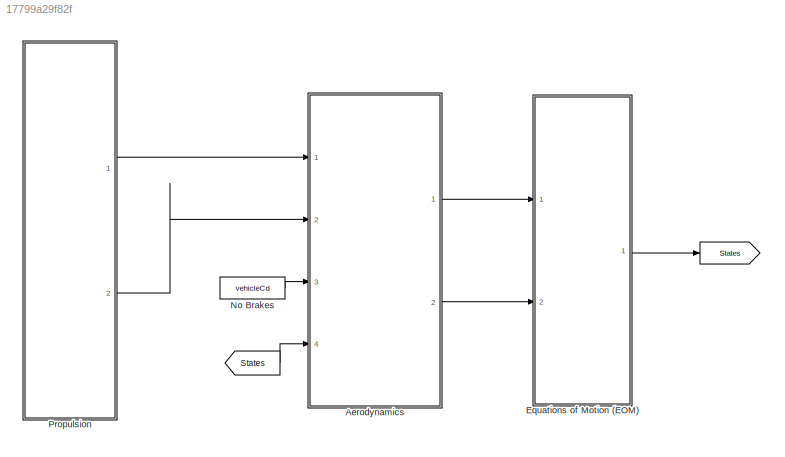
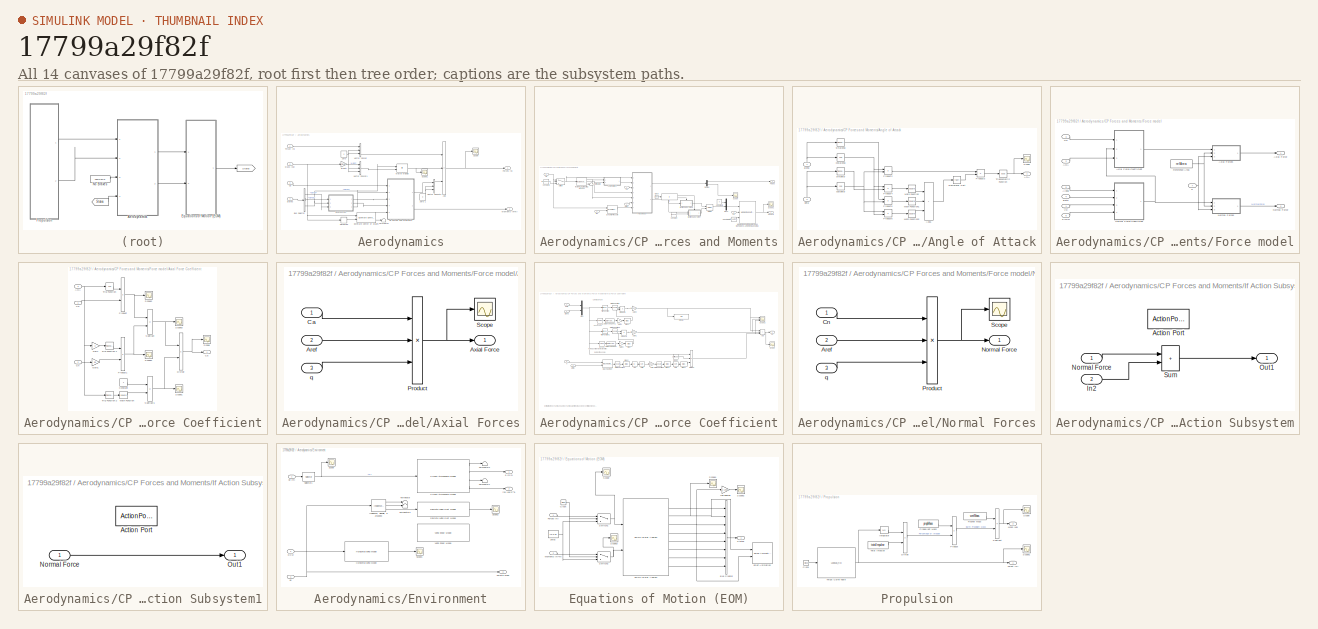
[diagram: thumbnail index - all 14 canvases of the model, root first then tree order]
MODEL slx_17799a29f82f
KIND model
CONFIG AbsTol = auto
CONFIG EnableMultiTasking = off
CONFIG FixedStep = auto
CONFIG MaxStep = auto
CONFIG MinStep = auto
CONFIG RelTol = 1e-3
CONFIG SampleTimeConstraint = Unconstrained
CONFIG SolverName = VariableStepAuto
CONFIG StartTime = 0.0
CONFIG StopTime = 45
WORKSPACE source: mxarray member
WORKSPACE bodyLength = 5
WORKSPACE brakesCd = 1
WORKSPACE brakesOn = 1
WORKSPACE dryCG = 3.9
WORKSPACE dryMass = 23
WORKSPACE finArea = 0.2
WORKSPACE finChordAngle = 0.5236
WORKSPACE finSpan = 0.4
WORKSPACE fullBrakesOn = 0
WORKSPACE gravity = 9.8067
WORKSPACE noseLength = 0.5
WORKSPACE propMass = 7.183
WORKSPACE refArea = 0.0182
WORKSPACE rocketCP = 1
WORKSPACE rocketDiam = 0.197
WORKSPACE targetAlt = 3048
WORKSPACE thrust = [0 2638.366 2528.97 3063.078 2426.009 2548.275 2599.755 2554.71 2644.801 2638.366 2561.145 2606.19 ... (27 elements, 27x1)]
WORKSPACE time = [0 0.045 0.067 0.084 0.124 0.186 0.231 0.298 0.371 0.534 0.979 1.142 ... (27 elements, 27x1)]
WORKSPACE totalImpulse = 10831
WORKSPACE vehicleCd = 0.8
WORKSPACE wetCG = 4
WORKSPACE wetMass = 30
BLOCK [Goto]  
  GotoTag = States
BLOCK [From]   
  GotoTag = States
BLOCK [SubSystem] Aerodynamics
  Ports = [4, 2]
  RequestExecContextInheritance = off
BLOCK [Sum] Aerodynamics/Add
  IconShape = rectangular
  Inputs = +--
  Ports = [3, 1]
BLOCK [BusSelector] Aerodynamics/Bus Selector
  OutputSignals = signal5,signal2,signal4
  Ports = [1, 3]
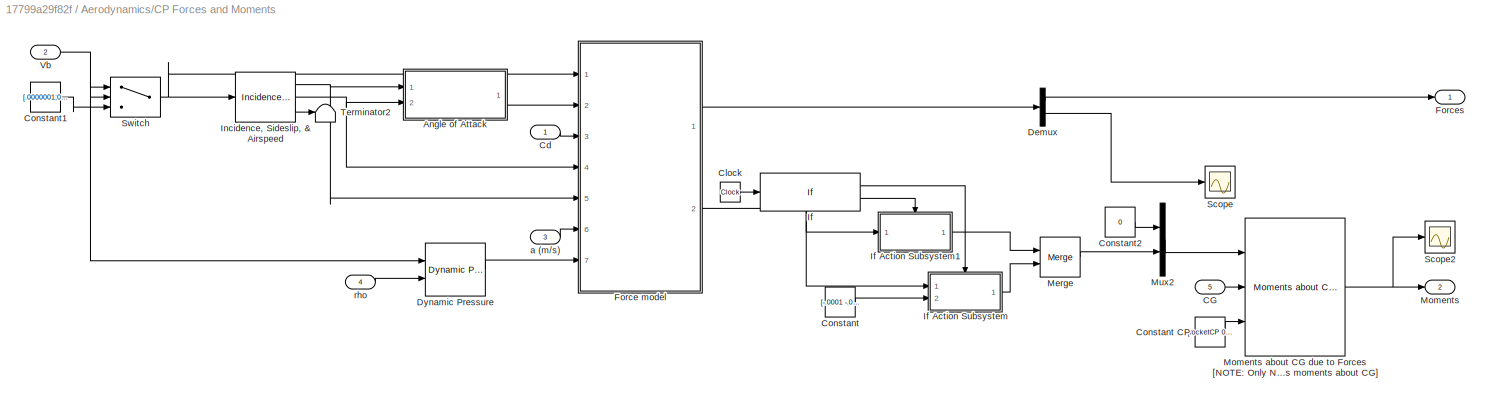
BLOCK [SubSystem] Aerodynamics/CP Forces and Moments
  Ports = [5, 2]
  RequestExecContextInheritance = off
BLOCK [SubSystem] Aerodynamics/CP Forces and Moments/Angle of Attack
  Ports = [2, 1]
  RequestExecContextInheritance = off
BLOCK [Outport] Aerodynamics/CP Forces and Moments/Angle of Attack/AOA
BLOCK [Sum] Aerodynamics/CP Forces and Moments/Angle of Attack/Add1
  IconShape = rectangular
  Inputs = +++
  Ports = [3, 1]
BLOCK [Math] Aerodynamics/CP Forces and Moments/Angle of Attack/Math Function
  Operator = square
  Ports = [1, 1]
  SignedPower = on
BLOCK [Math] Aerodynamics/CP Forces and Moments/Angle of Attack/Math Function1
  Operator = square
  Ports = [1, 1]
  SignedPower = on
BLOCK [Math] Aerodynamics/CP Forces and Moments/Angle of Attack/Math Function2
  Operator = square
  Ports = [1, 1]
  SignedPower = on
BLOCK [Product] Aerodynamics/CP Forces and Moments/Angle of Attack/Product2
  Ports = [2, 1]
BLOCK [Product] Aerodynamics/CP Forces and Moments/Angle of Attack/Product3
  Ports = [2, 1]
BLOCK [Product] Aerodynamics/CP Forces and Moments/Angle of Attack/Product4
  Ports = [2, 1]
BLOCK [Product] Aerodynamics/CP Forces and Moments/Angle of Attack/Product5
  Ports = [2, 1]
BLOCK [Product] Aerodynamics/CP Forces and Moments/Angle of Attack/Product6
  Ports = [2, 1]
BLOCK [Sqrt] Aerodynamics/CP Forces and Moments/Angle of Attack/Reciprocal Sqrt
  Operator = rSqrt
BLOCK [Scope] Aerodynamics/CP Forces and Moments/Angle of Attack/Scope
  Floating = off
  NumInputPorts = 1
  Ports = [1]
  ScopeSpecificationString = Simulink.scopes.TimeScopeBlockCfg('CurrentConfiguration', extmgr.ConfigurationSet(extmgr.Configuration('Core','General UI',true),extmgr.Configuration('Core','Source UI',true),extmgr.Configuration('Sources','WiredSimulink',true,'DataLoggingVariableName','ScopeData23','DataLoggingLimitDataPoints',true,'DataLoggingSaveFormat','Array','DataLoggingDecimation','1','DataLoggingDecimateData',true),extmgr....<+1682ch>
BLOCK [Trigonometry] Aerodynamics/CP Forces and Moments/Angle of Attack/Trigonometric Function
  Operator = acos
  Ports = [1, 1]
BLOCK [Inport] Aerodynamics/CP Forces and Moments/Angle of Attack/alpha
  NameLocation = right
BLOCK [Inport] Aerodynamics/CP Forces and Moments/Angle of Attack/beta
  NameLocation = right
  Port = 2
BLOCK [Trigonometry] Aerodynamics/CP Forces and Moments/Angle of Attack/cos(alpha)
  Operator = cos
  Ports = [1, 1]
BLOCK [Trigonometry] Aerodynamics/CP Forces and Moments/Angle of Attack/cos(beta)
  Operator = cos
  Ports = [1, 1]
BLOCK [Trigonometry] Aerodynamics/CP Forces and Moments/Angle of Attack/sin(alpha)
  Ports = [1, 1]
BLOCK [Trigonometry] Aerodynamics/CP Forces and Moments/Angle of Attack/sin(beta)
  Ports = [1, 1]
BLOCK [Inport] Aerodynamics/CP Forces and Moments/CG
  Port = 5
BLOCK [Inport] Aerodynamics/CP Forces and Moments/Cd
BLOCK [Clock] Aerodynamics/CP Forces and Moments/Clock
BLOCK [Constant] Aerodynamics/CP Forces and Moments/Constant
  Value = [-.0001 -.0001]
BLOCK [Constant] Aerodynamics/CP Forces and Moments/Constant CP
  Value = [rocketCP 0 0]
BLOCK [Constant] Aerodynamics/CP Forces and Moments/Constant1
  Value = [.0000001;0;0]
  VectorParams1D = off
BLOCK [Constant] Aerodynamics/CP Forces and Moments/Constant2
  Value = 0
BLOCK [Demux] Aerodynamics/CP Forces and Moments/Demux
  Outputs = 2
  Ports = [1, 2]
BLOCK [Reference] Aerodynamics/CP Forces and Moments/Dynamic Pressure  REF=aerolibasang/Dynamic Pressure
  Ports = [2, 1]
  SourceBlock = aerolibasang/Dynamic Pressure
  SourceProductBaseCode = AE
  SourceType = Dynamic Pressure
BLOCK [SubSystem] Aerodynamics/CP Forces and Moments/Force model
  Ports = [7, 2]
  RequestExecContextInheritance = off
BLOCK [Inport] Aerodynamics/CP Forces and Moments/Force model/AOA
  Port = 2
BLOCK [Inport] Aerodynamics/CP Forces and Moments/Force model/Alpha
  Port = 5
BLOCK [Outport] Aerodynamics/CP Forces and Moments/Force model/Axial Force
BLOCK [SubSystem] Aerodynamics/CP Forces and Moments/Force model/Axial Force Coefficient
  Ports = [3, 1]
  RequestExecContextInheritance = off
BLOCK [Inport] Aerodynamics/CP Forces and Moments/Force model/Axial Force Coefficient/AOA
  Port = 3
BLOCK [Outport] Aerodynamics/CP Forces and Moments/Force model/Axial Force Coefficient/Ca
BLOCK [Inport] Aerodynamics/CP Forces and Moments/Force model/Axial Force Coefficient/Cd
BLOCK [Inport] Aerodynamics/CP Forces and Moments/Force model/Axial Force Coefficient/Cn
  Port = 2
BLOCK [Constant] Aerodynamics/CP Forces and Moments/Force model/Axial Force Coefficient/Constant
BLOCK [Product] Aerodynamics/CP Forces and Moments/Force model/Axial Force Coefficient/Divide
  Inputs = */
  Ports = [2, 1]
BLOCK [Gain] Aerodynamics/CP Forces and Moments/Force model/Axial Force Coefficient/Gain
  Gain = 2
BLOCK [Gain] Aerodynamics/CP Forces and Moments/Force model/Axial Force Coefficient/Gain1
  Gain = 0.5
BLOCK [Math] Aerodynamics/CP Forces and Moments/Force model/Axial Force Coefficient/Math Function
  Operator = square
  Ports = [1, 1]
  SignedPower = on
BLOCK [Product] Aerodynamics/CP Forces and Moments/Force model/Axial Force Coefficient/Product
  Ports = [2, 1]
BLOCK [Product] Aerodynamics/CP Forces and Moments/Force model/Axial Force Coefficient/Product1
  Ports = [2, 1]
BLOCK [Scope] Aerodynamics/CP Forces and Moments/Force model/Axial Force Coefficient/Scope
  Floating = off
  NumInputPorts = 1
  Ports = [1]
  ScopeSpecificationString = Simulink.scopes.TimeScopeBlockCfg('CurrentConfiguration', extmgr.ConfigurationSet(extmgr.Configuration('Core','General UI',true),extmgr.Configuration('Core','Source UI',true),extmgr.Configuration('Sources','WiredSimulink',true,'DataLoggingVariableName','ScopeData5','DataLoggingLimitDataPoints',true,'DataLoggingSaveFormat','Array','DataLoggingDecimation','1','DataLoggingDecimateData',true),extmgr.C...<+1753ch>
BLOCK [Scope] Aerodynamics/CP Forces and Moments/Force model/Axial Force Coefficient/Scope1
  Floating = off
  NumInputPorts = 1
  Ports = [1]
  ScopeSpecificationString = C++SS(StrPVP('Location','[188, 365, 512, 604]'),StrPVP('Open','off'),MxPVP('AxesTitles',54,'struct(''axes1'',''%<SignalLabel>'')'),MxPVP('ScopeGraphics',57,'struct(''FigureColor'',''[0.5 0.5 0.5]'',''AxesColor'',''[0 0 0]'',''AxesTickColor'',''[1 1 1]'',''LineColors'',''[1 1 0;1 0 1;0 1 1;1 0 0;0 1 0;0 0 1]'',''LineStyles'',''-|-|-|-|-|-'',''LineWidths'',''[0.5 0.5 0.5 0.5 0.5 0.5]'',''MarkerStyle...<+197ch>  <repeated x3 — deduplicated; at blocks: Scope1, Scope3, Scope4>
BLOCK [Scope] Aerodynamics/CP Forces and Moments/Force model/Axial Force Coefficient/Scope2
  Floating = off
  NumInputPorts = 1
  Ports = [1]
  ScopeSpecificationString = Simulink.scopes.TimeScopeBlockCfg('CurrentConfiguration', extmgr.ConfigurationSet(extmgr.Configuration('Core','General UI',true),extmgr.Configuration('Core','Source UI',true),extmgr.Configuration('Sources','WiredSimulink',true,'DataLoggingVariableName','ScopeData15','DataLoggingLimitDataPoints',true,'DataLoggingSaveFormat','Array','DataLoggingDecimation','1','DataLoggingDecimateData',true),extmgr....<+1669ch>
BLOCK [Scope] Aerodynamics/CP Forces and Moments/Force model/Axial Force Coefficient/Scope3
  Floating = off
  NumInputPorts = 1
  Ports = [1]
BLOCK [Scope] Aerodynamics/CP Forces and Moments/Force model/Axial Force Coefficient/Scope4
  Floating = off
  NumInputPorts = 1
  Ports = [1]
BLOCK [Sum] Aerodynamics/CP Forces and Moments/Force model/Axial Force Coefficient/Subtract
  IconShape = rectangular
  Inputs = +-
  Ports = [2, 1]
BLOCK [Sum] Aerodynamics/CP Forces and Moments/Force model/Axial Force Coefficient/Subtract1
  IconShape = rectangular
  Inputs = +-
  Ports = [2, 1]
BLOCK [Trigonometry] Aerodynamics/CP Forces and Moments/Force model/Axial Force Coefficient/Trig Function
  Operator = cos
  Ports = [1, 1]
BLOCK [Trigonometry] Aerodynamics/CP Forces and Moments/Force model/Axial Force Coefficient/Trig Function 1
  Ports = [1, 1]
BLOCK [Trigonometry] Aerodynamics/CP Forces and Moments/Force model/Axial Force Coefficient/Trig Function 2
  Ports = [1, 1]
BLOCK [SubSystem] Aerodynamics/CP Forces and Moments/Force model/Axial Forces
  Ports = [3, 1]
  RequestExecContextInheritance = off
BLOCK [Inport] Aerodynamics/CP Forces and Moments/Force model/Axial Forces/Aref
  Port = 2
BLOCK [Outport] Aerodynamics/CP Forces and Moments/Force model/Axial Forces/Axial Force
BLOCK [Inport] Aerodynamics/CP Forces and Moments/Force model/Axial Forces/Ca
BLOCK [Product] Aerodynamics/CP Forces and Moments/Force model/Axial Forces/Product
  Inputs = 3
  Ports = [3, 1]
BLOCK [Scope] Aerodynamics/CP Forces and Moments/Force model/Axial Forces/Scope
  Floating = off
  NumInputPorts = 1
  Ports = [1]
  ScopeSpecificationString = C++SS(StrPVP('Location','[188, 365, 512, 604]'),StrPVP('Open','off'),MxPVP('AxesTitles',54,'struct(''axes1'',''%<SignalLabel>'')'),MxPVP('ScopeGraphics',57,'struct(''FigureColor'',''[0.5 0.5 0.5]'',''AxesColor'',''[0 0 0]'',''AxesTickColor'',''[1 1 1]'',''LineColors'',''[1 1 0;1 0 1;0 1 1;1 0 0;0 1 0;0 0 1]'',''LineStyles'',''-|-|-|-|-|-'',''LineWidths'',''[0.5 0.5 0.5 0.5 0.5 0.5]'',''MarkerStyle...<+268ch>
BLOCK [Inport] Aerodynamics/CP Forces and Moments/Force model/Axial Forces/q 
  Port = 3
BLOCK [Inport] Aerodynamics/CP Forces and Moments/Force model/Beta
  Port = 4
BLOCK [Inport] Aerodynamics/CP Forces and Moments/Force model/Cd
  Port = 3
BLOCK [Outport] Aerodynamics/CP Forces and Moments/Force model/Normal Force
  Port = 2
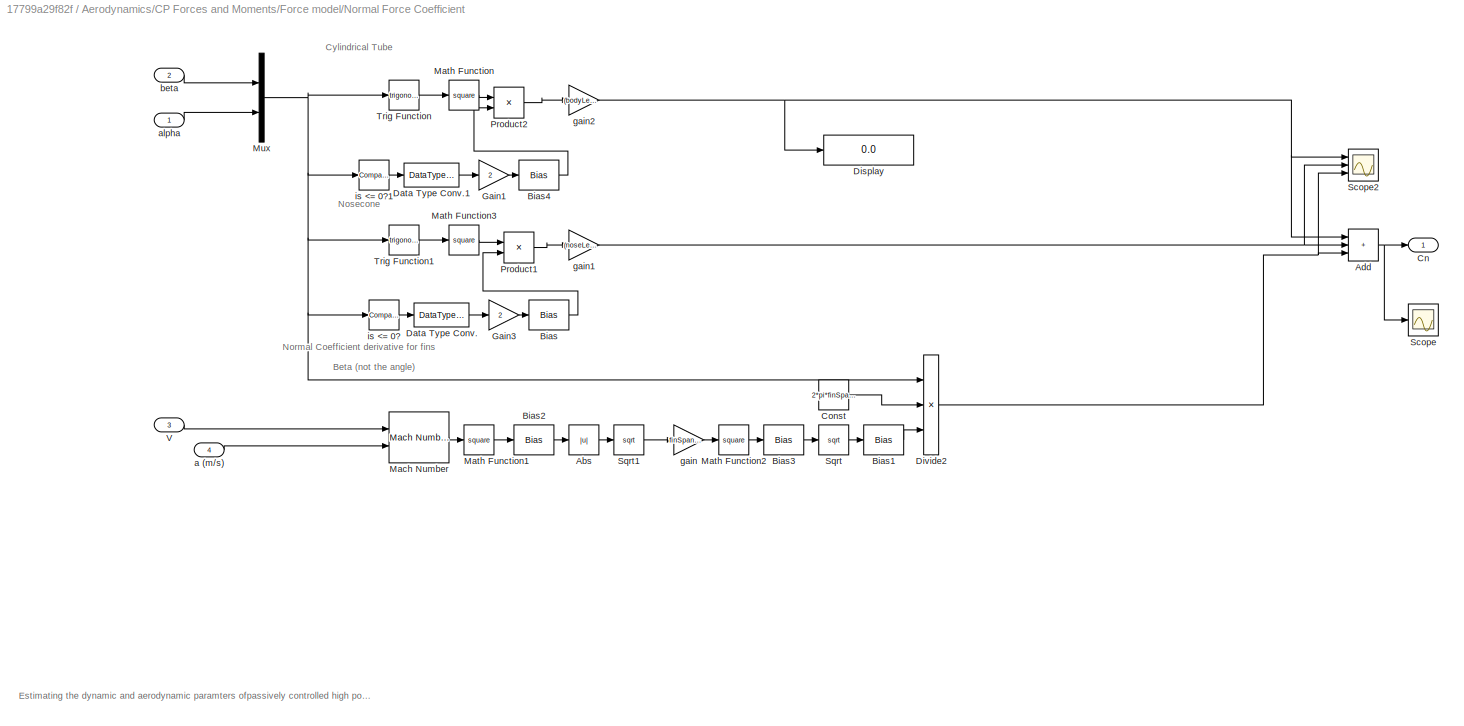
BLOCK [SubSystem] Aerodynamics/CP Forces and Moments/Force model/Normal Force Coefficient
  Ports = [4, 1]
  RequestExecContextInheritance = off
BLOCK [Abs] Aerodynamics/CP Forces and Moments/Force model/Normal Force Coefficient/Abs
  SaturateOnIntegerOverflow = off
BLOCK [Sum] Aerodynamics/CP Forces and Moments/Force model/Normal Force Coefficient/Add
  IconShape = rectangular
  Inputs = +++
  Ports = [3, 1]
BLOCK [Bias] Aerodynamics/CP Forces and Moments/Force model/Normal Force Coefficient/Bias
  Bias = -1
  SaturateOnIntegerOverflow = off
BLOCK [Bias] Aerodynamics/CP Forces and Moments/Force model/Normal Force Coefficient/Bias1
  Bias = 1
  SaturateOnIntegerOverflow = off
BLOCK [Bias] Aerodynamics/CP Forces and Moments/Force model/Normal Force Coefficient/Bias2
  Bias = -1
  SaturateOnIntegerOverflow = off
BLOCK [Bias] Aerodynamics/CP Forces and Moments/Force model/Normal Force Coefficient/Bias3
  Bias = 1
  SaturateOnIntegerOverflow = off
BLOCK [Bias] Aerodynamics/CP Forces and Moments/Force model/Normal Force Coefficient/Bias4
  Bias = -1
  SaturateOnIntegerOverflow = off
BLOCK [Outport] Aerodynamics/CP Forces and Moments/Force model/Normal Force Coefficient/Cn
BLOCK [Constant] Aerodynamics/CP Forces and Moments/Force model/Normal Force Coefficient/Const
  Value = 2*pi*finSpan^2
BLOCK [DataTypeConversion] Aerodynamics/CP Forces and Moments/Force model/Normal Force Coefficient/Data Type Conv.
  RndMeth = Floor
  SaturateOnIntegerOverflow = off
BLOCK [DataTypeConversion] Aerodynamics/CP Forces and Moments/Force model/Normal Force Coefficient/Data Type Conv.1
  RndMeth = Floor
  SaturateOnIntegerOverflow = off
BLOCK [Display] Aerodynamics/CP Forces and Moments/Force model/Normal Force Coefficient/Display
  Decimation = 1
  Ports = [1]
BLOCK [Product] Aerodynamics/CP Forces and Moments/Force model/Normal Force Coefficient/Divide2
  Inputs = **/
  Ports = [3, 1]
BLOCK [Gain] Aerodynamics/CP Forces and Moments/Force model/Normal Force Coefficient/Gain1
  Gain = 2
BLOCK [Gain] Aerodynamics/CP Forces and Moments/Force model/Normal Force Coefficient/Gain3
  Gain = 2
BLOCK [Reference] Aerodynamics/CP Forces and Moments/Force model/Normal Force Coefficient/Mach Number  REF=aerolibasang/Mach Number
  Ports = [2, 1]
  SourceBlock = aerolibasang/Mach Number
  SourceProductBaseCode = AE
  SourceType = Mach Number
BLOCK [Math] Aerodynamics/CP Forces and Moments/Force model/Normal Force Coefficient/Math Function
  Operator = square
  Ports = [1, 1]
  SignedPower = on
BLOCK [Math] Aerodynamics/CP Forces and Moments/Force model/Normal Force Coefficient/Math Function1
  Operator = square
  Ports = [1, 1]
  SignedPower = on
BLOCK [Math] Aerodynamics/CP Forces and Moments/Force model/Normal Force Coefficient/Math Function2
  Operator = square
  Ports = [1, 1]
  SignedPower = on
BLOCK [Math] Aerodynamics/CP Forces and Moments/Force model/Normal Force Coefficient/Math Function3
  Operator = square
  Ports = [1, 1]
  SignedPower = on
BLOCK [Mux] Aerodynamics/CP Forces and Moments/Force model/Normal Force Coefficient/Mux
  DisplayOption = bar
  Inputs = 2
  Ports = [2, 1]
BLOCK [Product] Aerodynamics/CP Forces and Moments/Force model/Normal Force Coefficient/Product1
  Ports = [2, 1]
BLOCK [Product] Aerodynamics/CP Forces and Moments/Force model/Normal Force Coefficient/Product2
  Ports = [2, 1]
BLOCK [Scope] Aerodynamics/CP Forces and Moments/Force model/Normal Force Coefficient/Scope
  Floating = off
  NumInputPorts = 1
  Ports = [1]
  ScopeSpecificationString = Simulink.scopes.TimeScopeBlockCfg('CurrentConfiguration', extmgr.ConfigurationSet(extmgr.Configuration('Core','General UI',true),extmgr.Configuration('Core','Source UI',true),extmgr.Configuration('Sources','WiredSimulink',true,'DataLoggingVariableName','ScopeData1','DataLoggingLimitDataPoints',true,'DataLoggingSaveFormat','Array','DataLoggingDecimation','1','DataLoggingDecimateData',true),extmgr.C...<+1701ch>
BLOCK [Scope] Aerodynamics/CP Forces and Moments/Force model/Normal Force Coefficient/Scope2
  Floating = off
  NumInputPorts = 3
  Ports = [3]
  ScopeSpecificationString = Simulink.scopes.TimeScopeBlockCfg('CurrentConfiguration', extmgr.ConfigurationSet(extmgr.Configuration('Core','General UI',true),extmgr.Configuration('Core','Source UI',true),extmgr.Configuration('Sources','WiredSimulink',true,'DataLoggingVariableName','ScopeData3','DataLoggingLimitDataPoints',true,'DataLoggingSaveFormat','Array','DataLoggingDecimation','1','DataLoggingDecimateData',true),extmgr.C...<+3082ch>
BLOCK [Sqrt] Aerodynamics/CP Forces and Moments/Force model/Normal Force Coefficient/Sqrt
BLOCK [Sqrt] Aerodynamics/CP Forces and Moments/Force model/Normal Force Coefficient/Sqrt1
BLOCK [Trigonometry] Aerodynamics/CP Forces and Moments/Force model/Normal Force Coefficient/Trig Function
  Ports = [1, 1]
BLOCK [Trigonometry] Aerodynamics/CP Forces and Moments/Force model/Normal Force Coefficient/Trig Function1
  Ports = [1, 1]
BLOCK [Inport] Aerodynamics/CP Forces and Moments/Force model/Normal Force Coefficient/V
  Port = 3
BLOCK [Inport] Aerodynamics/CP Forces and Moments/Force model/Normal Force Coefficient/a (m//s)
  Port = 4
BLOCK [Inport] Aerodynamics/CP Forces and Moments/Force model/Normal Force Coefficient/alpha
BLOCK [Inport] Aerodynamics/CP Forces and Moments/Force model/Normal Force Coefficient/beta
  Port = 2
BLOCK [Gain] Aerodynamics/CP Forces and Moments/Force model/Normal Force Coefficient/gain
  Gain = finSpan^2/(finArea*cos(finChordAngle))
BLOCK [Gain] Aerodynamics/CP Forces and Moments/Force model/Normal Force Coefficient/gain1
  Gain = (noseLength*rocketDiam*1.1)
BLOCK [Gain] Aerodynamics/CP Forces and Moments/Force model/Normal Force Coefficient/gain2
  Gain = (bodyLength*rocketDiam*1.1)
BLOCK [Reference] Aerodynamics/CP Forces and Moments/Force model/Normal Force Coefficient/is <= 0?  REF=simulink/Logic and Bit
Operations/Compare
To Zero
  Ports = [1, 1]
  SourceBlock = simulink/Logic and Bit\nOperations/Compare\nTo Zero
  SourceProductBaseCode = SL
  SourceType = Compare To Zero
BLOCK [Reference] Aerodynamics/CP Forces and Moments/Force model/Normal Force Coefficient/is <= 0?1  REF=simulink/Logic and Bit
Operations/Compare
To Zero
  Ports = [1, 1]
  SourceBlock = simulink/Logic and Bit\nOperations/Compare\nTo Zero
  SourceProductBaseCode = SL
  SourceType = Compare To Zero
BLOCK [SubSystem] Aerodynamics/CP Forces and Moments/Force model/Normal Forces
  Ports = [3, 1]
  RequestExecContextInheritance = off
BLOCK [Inport] Aerodynamics/CP Forces and Moments/Force model/Normal Forces/Aref
  Port = 2
BLOCK [Inport] Aerodynamics/CP Forces and Moments/Force model/Normal Forces/Cn
BLOCK [Outport] Aerodynamics/CP Forces and Moments/Force model/Normal Forces/Normal Force
BLOCK [Product] Aerodynamics/CP Forces and Moments/Force model/Normal Forces/Product
  Inputs = 3
  Ports = [3, 1]
BLOCK [Scope] Aerodynamics/CP Forces and Moments/Force model/Normal Forces/Scope
  Floating = off
  NumInputPorts = 1
  Ports = [1]
  ScopeSpecificationString = Simulink.scopes.TimeScopeBlockCfg('CurrentConfiguration', extmgr.ConfigurationSet(extmgr.Configuration('Core','General UI',true),extmgr.Configuration('Core','Source UI',true),extmgr.Configuration('Sources','WiredSimulink',true,'DataLoggingVariableName','ScopeData6','DataLoggingLimitDataPoints',true,'DataLoggingSaveFormat','Array','DataLoggingDecimation','1','DataLoggingDecimateData',true),extmgr.C...<+1718ch>
BLOCK [Inport] Aerodynamics/CP Forces and Moments/Force model/Normal Forces/q 
  Port = 3
BLOCK [Constant] Aerodynamics/CP Forces and Moments/Force model/Reference Area
  Value = refArea
BLOCK [Inport] Aerodynamics/CP Forces and Moments/Force model/Vb
BLOCK [Inport] Aerodynamics/CP Forces and Moments/Force model/a (m//s)
  Port = 6
BLOCK [Inport] Aerodynamics/CP Forces and Moments/Force model/q 
  Port = 7
BLOCK [Outport] Aerodynamics/CP Forces and Moments/Forces
BLOCK [If] Aerodynamics/CP Forces and Moments/If
  IfExpression = u1 > .5 & u1<=.51
  Ports = [1, 2]
BLOCK [SubSystem] Aerodynamics/CP Forces and Moments/If Action Subsystem
  Ports = [2, 1, 0, 0, 0, 0, 0, 1]
  RequestExecContextInheritance = off
  TreatAsAtomicUnit = on
BLOCK [ActionPort] Aerodynamics/CP Forces and Moments/If Action Subsystem/Action Port
  ActionPortLabel = if(u1 > .5 & u1<=.51)
BLOCK [Inport] Aerodynamics/CP Forces and Moments/If Action Subsystem/In2
  Port = 2
BLOCK [Inport] Aerodynamics/CP Forces and Moments/If Action Subsystem/Normal Force
BLOCK [Outport] Aerodynamics/CP Forces and Moments/If Action Subsystem/Out1
BLOCK [Sum] Aerodynamics/CP Forces and Moments/If Action Subsystem/Sum
  IconShape = rectangular
  Inputs = |++
  Ports = [2, 1]
BLOCK [SubSystem] Aerodynamics/CP Forces and Moments/If Action Subsystem1
  Ports = [1, 1, 0, 0, 0, 0, 0, 1]
  RequestExecContextInheritance = off
  TreatAsAtomicUnit = on
BLOCK [ActionPort] Aerodynamics/CP Forces and Moments/If Action Subsystem1/Action Port
  ActionPortLabel = else
BLOCK [Inport] Aerodynamics/CP Forces and Moments/If Action Subsystem1/Normal Force
BLOCK [Outport] Aerodynamics/CP Forces and Moments/If Action Subsystem1/Out1
BLOCK [Reference] Aerodynamics/CP Forces and Moments/Incidence, Sideslip, & Airspeed  REF=aerolibasang/Incidence, Sideslip,
& Airspeed
  Ports = [1, 3]
  SourceBlock = aerolibasang/Incidence, Sideslip,\n& Airspeed
  SourceProductBaseCode = AE
  SourceType = Incidence,Sideslip,&Airspeed
BLOCK [Merge] Aerodynamics/CP Forces and Moments/Merge
  Ports = [2, 1]
BLOCK [Outport] Aerodynamics/CP Forces and Moments/Moments
  Port = 2
BLOCK [Reference] Aerodynamics/CP Forces and Moments/Moments about CG due to Forces [NOTE: Only Normal Force applys moments about CG]  REF=aerolibbdyn/Moments about CG 
due to Forces
  Ports = [3, 1]
  SourceBlock = aerolibbdyn/Moments about CG \ndue to Forces
  SourceProductBaseCode = AE
  SourceType = Moments About CG Due To Forces
BLOCK [Mux] Aerodynamics/CP Forces and Moments/Mux2
  DisplayOption = bar
  Inputs = 2
  Ports = [2, 1]
BLOCK [Scope] Aerodynamics/CP Forces and Moments/Scope
  Floating = off
  NumInputPorts = 1
  Ports = [1]
  ScopeSpecificationString = Simulink.scopes.TimeScopeBlockCfg('CurrentConfiguration', extmgr.ConfigurationSet(extmgr.Configuration('Core','General UI',true),extmgr.Configuration('Core','Source UI',true),extmgr.Configuration('Sources','WiredSimulink',true,'DataLoggingVariableName','ScopeData1'),extmgr.Configuration('Visuals','Time Domain',true,'SerializedDisplays',{struct('MinYLimReal','-1.95335','MaxYLimReal','-0.03813','YLa...<+1412ch>
BLOCK [Scope] Aerodynamics/CP Forces and Moments/Scope2
  Floating = off
  NumInputPorts = 1
  Ports = [1]
  ScopeSpecificationString = Simulink.scopes.TimeScopeBlockCfg('CurrentConfiguration', extmgr.ConfigurationSet(extmgr.Configuration('Core','General UI',true),extmgr.Configuration('Core','Source UI',true),extmgr.Configuration('Sources','WiredSimulink',true,'DataLoggingVariableName','ScopeData3'),extmgr.Configuration('Visuals','Time Domain',true,'SerializedDisplays',{struct('MinYLimReal','-1577.53498','MaxYLimReal','1577.53498'...<+1412ch>
BLOCK [Switch] Aerodynamics/CP Forces and Moments/Switch
  Criteria = u2 ~= 0
  InputSameDT = off
  SaturateOnIntegerOverflow = off
BLOCK [Terminator] Aerodynamics/CP Forces and Moments/Terminator2
BLOCK [Inport] Aerodynamics/CP Forces and Moments/Vb
  Port = 2
BLOCK [Inport] Aerodynamics/CP Forces and Moments/a (m//s)
  Port = 3
BLOCK [Inport] Aerodynamics/CP Forces and Moments/rho
  Port = 4
BLOCK [Inport] Aerodynamics/Cd
  Port = 3
BLOCK [Derivative] Aerodynamics/Derivative
BLOCK [SubSystem] Aerodynamics/Environment
  Ports = [3, 3]
  RequestExecContextInheritance = off
BLOCK [Reference] Aerodynamics/Environment/COESA Atmosphere Model  REF=aerolibatmos2/COESA Atmosphere Model
  Ports = [1, 4]
  SourceBlock = aerolibatmos2/COESA Atmosphere Model
  SourceProductBaseCode = AE
  SourceType = Atmosphere Model
BLOCK [Inport] Aerodynamics/Environment/DCM
  Port = 2
BLOCK [Reference] Aerodynamics/Environment/Discrete Wind Gust Model  REF=aerolibwind2/Discrete Wind Gust Model
  Commented = on
  Ports = [1, 1]
  SourceBlock = aerolibwind2/Discrete Wind Gust Model
  SourceProductBaseCode = AE
  SourceType = Discrete Wind Gust Model
BLOCK [Reference] Aerodynamics/Environment/Horizontal Wind Model  REF=aerolibwind2/Horizontal Wind Model
  Ports = [1, 1]
  SourceBlock = aerolibwind2/Horizontal Wind Model
  SourceProductBaseCode = AE
  SourceType = Horizontal Wind Model
BLOCK [Reference] Aerodynamics/Environment/Incidence, Sideslip, & Airspeed  REF=aerolibasang/Incidence, Sideslip,
& Airspeed
  Commented = on
  Ports = [1, 3]
  SourceBlock = aerolibasang/Incidence, Sideslip,\n& Airspeed
  SourceProductBaseCode = AE
  SourceType = Incidence,Sideslip,&Airspeed
BLOCK [Scope] Aerodynamics/Environment/Scope
  Floating = off
  NumInputPorts = 1
  Ports = [1]
  ScopeSpecificationString = Simulink.scopes.TimeScopeBlockCfg('CurrentConfiguration', extmgr.ConfigurationSet(extmgr.Configuration('Core','General UI',true),extmgr.Configuration('Core','Source UI',true),extmgr.Configuration('Sources','WiredSimulink',true,'DataLoggingVariableName','ScopeData12','DataLoggingLimitDataPoints',true,'DataLoggingSaveFormat','Array','DataLoggingDecimation','1','DataLoggingDecimateData',true),extmgr....<+1687ch>
BLOCK [Scope] Aerodynamics/Environment/Scope1
  Floating = off
  NumInputPorts = 1
  Ports = [1]
  ScopeSpecificationString = Simulink.scopes.TimeScopeBlockCfg('CurrentConfiguration', extmgr.ConfigurationSet(extmgr.Configuration('Core','General UI',true),extmgr.Configuration('Core','Source UI',true),extmgr.Configuration('Sources','WiredSimulink',true,'DataLoggingVariableName','ScopeData2'),extmgr.Configuration('Visuals','Time Domain',true,'SerializedDisplays',{struct('MinYLimReal','-1.21334','MaxYLimReal','0.92007','YLab...<+1434ch>
BLOCK [Scope] Aerodynamics/Environment/Scope2
  Commented = on
  Floating = off
  NumInputPorts = 1
  Ports = [1]
  ScopeSpecificationString = Simulink.scopes.TimeScopeBlockCfg('CurrentConfiguration', extmgr.ConfigurationSet(extmgr.Configuration('Core','General UI',true),extmgr.Configuration('Core','Source UI',true),extmgr.Configuration('Sources','WiredSimulink',true,'DataLoggingVariableName','ScopeData4'),extmgr.Configuration('Visuals','Time Domain',true,'SerializedDisplays',{struct('MinYLimReal','-1.00000','MaxYLimReal','1.00000','YLab...<+1443ch>
BLOCK [Selector] Aerodynamics/Environment/Selector1
  IndexOptions = Index vector (dialog)
  Indices = 1
  InputPortWidth = 3
  OutputSizes = 1
  Ports = [1, 1]
BLOCK [Terminator] Aerodynamics/Environment/Terminator
  Commented = on
BLOCK [Terminator] Aerodynamics/Environment/Terminator1
BLOCK [Terminator] Aerodynamics/Environment/Terminator2
BLOCK [Terminator] Aerodynamics/Environment/Terminator3
  Commented = on
BLOCK [Inport] Aerodynamics/Environment/Vb
  Port = 3
BLOCK [Outport] Aerodynamics/Environment/Vb(with wind)
  Port = 3
BLOCK [Reference] Aerodynamics/Environment/Wind Shear Model  REF=aerolibwind2/Wind Shear Model
  Commented = on
  Ports = [2, 1]
  SourceBlock = aerolibwind2/Wind Shear Model
  SourceProductBaseCode = AE
  SourceType = Wind Shear Model
BLOCK [Inport] Aerodynamics/Environment/Xe (m)
BLOCK [Outport] Aerodynamics/Environment/a (m//s)
BLOCK [Outport] Aerodynamics/Environment/rho (kg//m^3)
  Port = 2
BLOCK [Reference] Aerodynamics/Estimate Center of Gravity  REF=aerolibbdyn/Estimate
Center of Gravity
  Ports = [2, 2]
  SourceBlock = aerolibbdyn/Estimate\nCenter of Gravity
  SourceProductBaseCode = AE
  SourceType = Estimate Center of Gravity
BLOCK [Outport] Aerodynamics/Forces (N)
BLOCK [Inport] Aerodynamics/Mass (kg)
  Port = 2
BLOCK [Product] Aerodynamics/Matrix Multiply
  Multiplication = Matrix(*)
  Ports = [2, 1]
BLOCK [Outport] Aerodynamics/Moments (N*m)
  Port = 2
BLOCK [Scope] Aerodynamics/Scope
  Floating = off
  NumInputPorts = 1
  Ports = [1]
  ScopeSpecificationString = Simulink.scopes.TimeScopeBlockCfg('CurrentConfiguration', extmgr.ConfigurationSet(extmgr.Configuration('Core','General UI',true),extmgr.Configuration('Core','Source UI',true),extmgr.Configuration('Sources','WiredSimulink',true,'DataLoggingVariableName','ScopeData1'),extmgr.Configuration('Visuals','Time Domain',true,'SerializedDisplays',{struct('MinYLimReal','-7461974.57747','MaxYLimReal','6430506....<+1470ch>
BLOCK [Scope] Aerodynamics/Scope1
  Floating = off
  NumInputPorts = 1
  Ports = [1]
  ScopeSpecificationString = Simulink.scopes.TimeScopeBlockCfg('CurrentConfiguration', extmgr.ConfigurationSet(extmgr.Configuration('Core','General UI',true),extmgr.Configuration('Core','Source UI',true),extmgr.Configuration('Sources','WiredSimulink',true,'DataLoggingVariableName','ScopeData3'),extmgr.Configuration('Visuals','Time Domain',true,'SerializedDisplays',{struct('MinYLimReal','-46.72889','MaxYLimReal','332.0821','YL...<+1455ch>
BLOCK [Inport] Aerodynamics/States
  Port = 4
BLOCK [Terminator] Aerodynamics/Terminator
BLOCK [Inport] Aerodynamics/Thrust (N)
BLOCK [Concatenate] Aerodynamics/Vector Concat
  NumInputs = 3
  Ports = [3, 1]
BLOCK [Concatenate] Aerodynamics/Vector Concat1
  NumInputs = 3
  Ports = [3, 1]
BLOCK [Concatenate] Aerodynamics/Vector Concat2
  NumInputs = 3
  Ports = [3, 1]
BLOCK [Gain] Aerodynamics/gravity
  Gain = gravity
BLOCK [Constant] Aerodynamics/zero 
  Value = 0
BLOCK [Constant] Aerodynamics/zero 1
  Value = 0
BLOCK [SubSystem] Equations of Motion (EOM)
  Ports = [2, 1]
  RequestExecContextInheritance = off
BLOCK [Reference] Equations of Motion (EOM)/6DOF (Euler Angles)  REF=shared6dof/6DOF (Euler Angles)
  Ports = [2, 8]
  SourceBlock = shared6dof/6DOF (Euler Angles)
  SourceProductBaseCode = AE,PW,MT,UV,VE,VP
  SourceType = 6DOF EoM (Body Axis)
BLOCK [Reference] Equations of Motion (EOM)/6DoF Animation  REF=aerolibanim/6DoF Animation
  Ports = [2]
  SourceBlock = aerolibanim/6DoF Animation
  SourceProductBaseCode = AE
  SourceType = 6DoF_Animation
BLOCK [BusCreator] Equations of Motion (EOM)/Bus Creator
  DisplayOption = bar
  InheritFromInputs = on
  Inputs = 8
  Ports = [8, 1]
BLOCK [Clock] Equations of Motion (EOM)/Clock
BLOCK [Inport] Equations of Motion (EOM)/Forces (N)
BLOCK [Inport] Equations of Motion (EOM)/Moments (N*m)
  Port = 2
BLOCK [Scope] Equations of Motion (EOM)/Scope
  Floating = off
  NumInputPorts = 1
  Ports = [1]
  ScopeSpecificationString = Simulink.scopes.TimeScopeBlockCfg('CurrentConfiguration', extmgr.ConfigurationSet(extmgr.Configuration('Core','General UI',true),extmgr.Configuration('Core','Source UI',true),extmgr.Configuration('Sources','WiredSimulink',true,'DataLoggingVariableName','ScopeData2'),extmgr.Configuration('Visuals','Time Domain',true,'SerializedDisplays',{struct('MinYLimReal','-37.78517','MaxYLimReal','2651.21245','...<+1450ch>
BLOCK [Scope] Equations of Motion (EOM)/Scope1
  Floating = off
  NumInputPorts = 1
  Ports = [1]
  ScopeSpecificationString = Simulink.scopes.TimeScopeBlockCfg('CurrentConfiguration', extmgr.ConfigurationSet(extmgr.Configuration('Core','General UI',true),extmgr.Configuration('Core','Source UI',true),extmgr.Configuration('Sources','WiredSimulink',true,'DataLoggingVariableName','ScopeData2'),extmgr.Configuration('Visuals','Time Domain',true,'SerializedDisplays',{struct('MinYLimReal','-18.23878','MaxYLimReal','162.72565','Y...<+1444ch>
BLOCK [Scope] Equations of Motion (EOM)/Scope2
  Floating = off
  NumInputPorts = 1
  Ports = [1]
  ScopeSpecificationString = Simulink.scopes.TimeScopeBlockCfg('CurrentConfiguration', extmgr.ConfigurationSet(extmgr.Configuration('Core','General UI',true),extmgr.Configuration('Core','Source UI',true),extmgr.Configuration('Sources','WiredSimulink',true,'DataLoggingVariableName','ScopeData4'),extmgr.Configuration('Visuals','Time Domain',true,'SerializedDisplays',{struct('MinYLimReal','-109.95962','MaxYLimReal','62.18416','Y...<+1413ch>
BLOCK [Scope] Equations of Motion (EOM)/Scope3
  Floating = off
  NumInputPorts = 1
  Ports = [1]
  ScopeSpecificationString = Simulink.scopes.TimeScopeBlockCfg('CurrentConfiguration', extmgr.ConfigurationSet(extmgr.Configuration('Core','General UI',true),extmgr.Configuration('Core','Source UI',true),extmgr.Configuration('Sources','WiredSimulink',true,'DataLoggingVariableName','ScopeData5'),extmgr.Configuration('Visuals','Time Domain',true,'SerializedDisplays',{struct('MinYLimReal','-1619.17185','MaxYLimReal','1619.17185'...<+1414ch>
BLOCK [Outport] Equations of Motion (EOM)/States
BLOCK [Switch] Equations of Motion (EOM)/Switch1
  Criteria = u2 > Threshold
  InputSameDT = off
  SaturateOnIntegerOverflow = off
BLOCK [Switch] Equations of Motion (EOM)/Switch2
  Criteria = u2 > Threshold
  InputSameDT = off
  SaturateOnIntegerOverflow = off
BLOCK [Gain] Equations of Motion (EOM)/rad-degree
  Gain = 57.2958
BLOCK [Constant] Equations of Motion (EOM)/zeros 
  Value = [0 0 0]
BLOCK [Constant] No Brakes
  Value = vehicleCd
BLOCK [SubSystem] Propulsion
  Ports = [0, 2]
  RequestExecContextInheritance = off
BLOCK [Clock] Propulsion/Clock
  Decimation = 1
BLOCK [Product] Propulsion/Divide
  Inputs = */
  Ports = [2, 1]
BLOCK [Integrator] Propulsion/Integrator
  Ports = [1, 1]
BLOCK [Outport] Propulsion/Mass (kg)
  Port = 2
BLOCK [Product] Propulsion/Product
  Ports = [2, 1]
BLOCK [Constant] Propulsion/Propellant Mass
  Value = propMass
BLOCK [Constant] Propulsion/Rocket Mass
  Value = wetMass
BLOCK [Scope] Propulsion/Scope
  Floating = off
  NumInputPorts = 1
  Ports = [1]
  ScopeSpecificationString = Simulink.scopes.TimeScopeBlockCfg('CurrentConfiguration', extmgr.ConfigurationSet(extmgr.Configuration('Core','General UI',true),extmgr.Configuration('Core','Source UI',true),extmgr.Configuration('Sources','WiredSimulink',true),extmgr.Configuration('Visuals','Time Domain',true,'SerializedDisplays',{struct('MinYLimReal','21.91922','MaxYLimReal','30.89786','YLabelReal','','MinYLimMag','21.91922','Ma...<+1367ch>
BLOCK [Scope] Propulsion/Scope1
  Floating = off
  NumInputPorts = 1
  Ports = [1]
  ScopeSpecificationString = Simulink.scopes.TimeScopeBlockCfg('CurrentConfiguration', extmgr.ConfigurationSet(extmgr.Configuration('Core','General UI',true),extmgr.Configuration('Core','Source UI',true),extmgr.Configuration('Sources','WiredSimulink',true,'DataLoggingVariableName','ScopeData1'),extmgr.Configuration('Visuals','Time Domain',true,'SerializedDisplays',{struct('MinYLimReal','-344.27101','MaxYLimReal','3098.43908',...<+1395ch>
BLOCK [Sum] Propulsion/Subtract
  IconShape = rectangular
  Inputs = +-
  Ports = [2, 1]
BLOCK [Outport] Propulsion/Thrust (N)
BLOCK [Lookup_n-D] Propulsion/Thrust Curve Table
  BreakpointsForDimension1 = time
  ExtrapMethod = Clip
  InputPortMap = u0
  InternalRulePriority = Speed
  NumberOfTableDimensions = 1
  Ports = [1, 1]
  RndMeth = Simplest
  Table = thrust
BLOCK [Constant] Propulsion/Total Impulse
  Value = totalImpulse
ANNOTATION Aerodynamics/CP Forces and Moments/Force model/Normal Force Coefficient: Beta (not the angle)
ANNOTATION Aerodynamics/CP Forces and Moments/Force model/Normal Force Coefficient: Cylindrical Tube
ANNOTATION Aerodynamics/CP Forces and Moments/Force model/Normal Force Coefficient: Estimating the dynamic and aerodynamic paramters ofpassively controlled high power rockets for flight simulatonSimon Box, Christopher M. Bishop, Hugh HuntFebruary, 2009
ANNOTATION Aerodynamics/CP Forces and Moments/Force model/Normal Force Coefficient: Normal Coefficient derivative for fins
ANNOTATION Aerodynamics/CP Forces and Moments/Force model/Normal Force Coefficient: Nosecone
LINE   :1 -> Aerodynamics:4
NET Aerodynamics/Add:1 -> Aerodynamics/Forces (N):1, Aerodynamics/Scope:1
LINE Aerodynamics/Bus Selector:1 -> Aerodynamics/Environment:3
LINE Aerodynamics/Bus Selector:2 -> Aerodynamics/Environment:1
NET Aerodynamics/Bus Selector:3 -> Aerodynamics/Environment:2, Aerodynamics/Matrix Multiply:1
LINE Aerodynamics/CP Forces and Moments/Angle of Attack/Add1:1 -> Aerodynamics/CP Forces and Moments/Angle of Attack/Reciprocal Sqrt:1
LINE Aerodynamics/CP Forces and Moments/Angle of Attack/Math Function1:1 -> Aerodynamics/CP Forces and Moments/Angle of Attack/Add1:2
LINE Aerodynamics/CP Forces and Moments/Angle of Attack/Math Function2:1 -> Aerodynamics/CP Forces and Moments/Angle of Attack/Add1:3
LINE Aerodynamics/CP Forces and Moments/Angle of Attack/Math Function:1 -> Aerodynamics/CP Forces and Moments/Angle of Attack/Add1:1
LINE Aerodynamics/CP Forces and Moments/Angle of Attack/Product2:1 -> Aerodynamics/CP Forces and Moments/Angle of Attack/Product3:1
LINE Aerodynamics/CP Forces and Moments/Angle of Attack/Product3:1 -> Aerodynamics/CP Forces and Moments/Angle of Attack/Trigonometric Function:1
LINE Aerodynamics/CP Forces and Moments/Angle of Attack/Product4:1 -> Aerodynamics/CP Forces and Moments/Angle of Attack/Math Function:1
LINE Aerodynamics/CP Forces and Moments/Angle of Attack/Product5:1 -> Aerodynamics/CP Forces and Moments/Angle of Attack/Math Function1:1
LINE Aerodynamics/CP Forces and Moments/Angle of Attack/Product6:1 -> Aerodynamics/CP Forces and Moments/Angle of Attack/Math Function2:1
LINE Aerodynamics/CP Forces and Moments/Angle of Attack/Reciprocal Sqrt:1 -> Aerodynamics/CP Forces and Moments/Angle of Attack/Product3:2
NET Aerodynamics/CP Forces and Moments/Angle of Attack/Trigonometric Function:1 -> Aerodynamics/CP Forces and Moments/Angle of Attack/AOA:1, Aerodynamics/CP Forces and Moments/Angle of Attack/Scope:1
NET Aerodynamics/CP Forces and Moments/Angle of Attack/alpha:1 -> Aerodynamics/CP Forces and Moments/Angle of Attack/cos(alpha):1, Aerodynamics/CP Forces and Moments/Angle of Attack/sin(alpha):1
NET Aerodynamics/CP Forces and Moments/Angle of Attack/beta:1 -> Aerodynamics/CP Forces and Moments/Angle of Attack/cos(beta):1, Aerodynamics/CP Forces and Moments/Angle of Attack/sin(beta):1
NET Aerodynamics/CP Forces and Moments/Angle of Attack/cos(alpha):1 -> Aerodynamics/CP Forces and Moments/Angle of Attack/Product2:1, Aerodynamics/CP Forces and Moments/Angle of Attack/Product4:1, Aerodynamics/CP Forces and Moments/Angle of Attack/Product6:2
NET Aerodynamics/CP Forces and Moments/Angle of Attack/cos(beta):1 -> Aerodynamics/CP Forces and Moments/Angle of Attack/Product2:2, Aerodynamics/CP Forces and Moments/Angle of Attack/Product5:2, Aerodynamics/CP Forces and Moments/Angle of Attack/Product6:1
LINE Aerodynamics/CP Forces and Moments/Angle of Attack/sin(alpha):1 -> Aerodynamics/CP Forces and Moments/Angle of Attack/Product5:1
LINE Aerodynamics/CP Forces and Moments/Angle of Attack/sin(beta):1 -> Aerodynamics/CP Forces and Moments/Angle of Attack/Product4:2
LINE Aerodynamics/CP Forces and Moments/Angle of Attack:1 -> Aerodynamics/CP Forces and Moments/Force model:2
LINE Aerodynamics/CP Forces and Moments/CG:1 -> Aerodynamics/CP Forces and Moments/Moments about CG due to Forces [NOTE: Only Normal Force applys moments about CG]:2
LINE Aerodynamics/CP Forces and Moments/Cd:1 -> Aerodynamics/CP Forces and Moments/Force model:3
LINE Aerodynamics/CP Forces and Moments/Clock:1 -> Aerodynamics/CP Forces and Moments/If:1
LINE Aerodynamics/CP Forces and Moments/Constant CP:1 -> Aerodynamics/CP Forces and Moments/Moments about CG due to Forces [NOTE: Only Normal Force applys moments about CG]:3
LINE Aerodynamics/CP Forces and Moments/Constant1:1 -> Aerodynamics/CP Forces and Moments/Switch:3
LINE Aerodynamics/CP Forces and Moments/Constant2:1 -> Aerodynamics/CP Forces and Moments/Mux2:1
LINE Aerodynamics/CP Forces and Moments/Constant:1 -> Aerodynamics/CP Forces and Moments/If Action Subsystem:2
LINE Aerodynamics/CP Forces and Moments/Demux:1 -> Aerodynamics/CP Forces and Moments/Forces:1
LINE Aerodynamics/CP Forces and Moments/Demux:2 -> Aerodynamics/CP Forces and Moments/Scope:1
LINE Aerodynamics/CP Forces and Moments/Dynamic Pressure:1 -> Aerodynamics/CP Forces and Moments/Force model:7
LINE Aerodynamics/CP Forces and Moments/Force model/AOA:1 -> Aerodynamics/CP Forces and Moments/Force model/Axial Force Coefficient:3
LINE Aerodynamics/CP Forces and Moments/Force model/Alpha:1 -> Aerodynamics/CP Forces and Moments/Force model/Normal Force Coefficient:1
NET Aerodynamics/CP Forces and Moments/Force model/Axial Force Coefficient/AOA:1 -> Aerodynamics/CP Forces and Moments/Force model/Axial Force Coefficient/Gain:1, Aerodynamics/CP Forces and Moments/Force model/Axial Force Coefficient/Trig Function 2:1, Aerodynamics/CP Forces and Moments/Force model/Axial Force Coefficient/Trig Function:1
LINE Aerodynamics/CP Forces and Moments/Force model/Axial Force Coefficient/Cd:1 -> Aerodynamics/CP Forces and Moments/Force model/Axial Force Coefficient/Product:2
LINE Aerodynamics/CP Forces and Moments/Force model/Axial Force Coefficient/Cn:1 -> Aerodynamics/CP Forces and Moments/Force model/Axial Force Coefficient/Gain1:1
LINE Aerodynamics/CP Forces and Moments/Force model/Axial Force Coefficient/Constant:1 -> Aerodynamics/CP Forces and Moments/Force model/Axial Force Coefficient/Subtract1:1
NET Aerodynamics/CP Forces and Moments/Force model/Axial Force Coefficient/Divide:1 -> Aerodynamics/CP Forces and Moments/Force model/Axial Force Coefficient/Ca:1, Aerodynamics/CP Forces and Moments/Force model/Axial Force Coefficient/Scope:1
LINE Aerodynamics/CP Forces and Moments/Force model/Axial Force Coefficient/Gain1:1 -> Aerodynamics/CP Forces and Moments/Force model/Axial Force Coefficient/Product1:2
LINE Aerodynamics/CP Forces and Moments/Force model/Axial Force Coefficient/Gain:1 -> Aerodynamics/CP Forces and Moments/Force model/Axial Force Coefficient/Trig Function 1:1
LINE Aerodynamics/CP Forces and Moments/Force model/Axial Force Coefficient/Math Function:1 -> Aerodynamics/CP Forces and Moments/Force model/Axial Force Coefficient/Subtract1:2
NET Aerodynamics/CP Forces and Moments/Force model/Axial Force Coefficient/Product1:1 -> Aerodynamics/CP Forces and Moments/Force model/Axial Force Coefficient/Scope4:1, Aerodynamics/CP Forces and Moments/Force model/Axial Force Coefficient/Subtract:2
NET Aerodynamics/CP Forces and Moments/Force model/Axial Force Coefficient/Product:1 -> Aerodynamics/CP Forces and Moments/Force model/Axial Force Coefficient/Scope2:1, Aerodynamics/CP Forces and Moments/Force model/Axial Force Coefficient/Subtract:1
NET Aerodynamics/CP Forces and Moments/Force model/Axial Force Coefficient/Subtract1:1 -> Aerodynamics/CP Forces and Moments/Force model/Axial Force Coefficient/Divide:2, Aerodynamics/CP Forces and Moments/Force model/Axial Force Coefficient/Scope1:1
NET Aerodynamics/CP Forces and Moments/Force model/Axial Force Coefficient/Subtract:1 -> Aerodynamics/CP Forces and Moments/Force model/Axial Force Coefficient/Divide:1, Aerodynamics/CP Forces and Moments/Force model/Axial Force Coefficient/Scope3:1
LINE Aerodynamics/CP Forces and Moments/Force model/Axial Force Coefficient/Trig Function 1:1 -> Aerodynamics/CP Forces and Moments/Force model/Axial Force Coefficient/Product1:1
LINE Aerodynamics/CP Forces and Moments/Force model/Axial Force Coefficient/Trig Function 2:1 -> Aerodynamics/CP Forces and Moments/Force model/Axial Force Coefficient/Math Function:1
LINE Aerodynamics/CP Forces and Moments/Force model/Axial Force Coefficient/Trig Function:1 -> Aerodynamics/CP Forces and Moments/Force model/Axial Force Coefficient/Product:1
LINE Aerodynamics/CP Forces and Moments/Force model/Axial Force Coefficient:1 -> Aerodynamics/CP Forces and Moments/Force model/Axial Forces:1
LINE Aerodynamics/CP Forces and Moments/Force model/Axial Forces/Aref:1 -> Aerodynamics/CP Forces and Moments/Force model/Axial Forces/Product:2
LINE Aerodynamics/CP Forces and Moments/Force model/Axial Forces/Ca:1 -> Aerodynamics/CP Forces and Moments/Force model/Axial Forces/Product:1
NET Aerodynamics/CP Forces and Moments/Force model/Axial Forces/Product:1 -> Aerodynamics/CP Forces and Moments/Force model/Axial Forces/Axial Force:1, Aerodynamics/CP Forces and Moments/Force model/Axial Forces/Scope:1
LINE Aerodynamics/CP Forces and Moments/Force model/Axial Forces/q :1 -> Aerodynamics/CP Forces and Moments/Force model/Axial Forces/Product:3
LINE Aerodynamics/CP Forces and Moments/Force model/Axial Forces:1 -> Aerodynamics/CP Forces and Moments/Force model/Axial Force:1
LINE Aerodynamics/CP Forces and Moments/Force model/Beta:1 -> Aerodynamics/CP Forces and Moments/Force model/Normal Force Coefficient:2
LINE Aerodynamics/CP Forces and Moments/Force model/Cd:1 -> Aerodynamics/CP Forces and Moments/Force model/Axial Force Coefficient:1
LINE Aerodynamics/CP Forces and Moments/Force model/Normal Force Coefficient/Abs:1 -> Aerodynamics/CP Forces and Moments/Force model/Normal Force Coefficient/Sqrt1:1
NET Aerodynamics/CP Forces and Moments/Force model/Normal Force Coefficient/Add:1 -> Aerodynamics/CP Forces and Moments/Force model/Normal Force Coefficient/Cn:1, Aerodynamics/CP Forces and Moments/Force model/Normal Force Coefficient/Scope:1
LINE Aerodynamics/CP Forces and Moments/Force model/Normal Force Coefficient/Bias1:1 -> Aerodynamics/CP Forces and Moments/Force model/Normal Force Coefficient/Divide2:3
LINE Aerodynamics/CP Forces and Moments/Force model/Normal Force Coefficient/Bias2:1 -> Aerodynamics/CP Forces and Moments/Force model/Normal Force Coefficient/Abs:1
LINE Aerodynamics/CP Forces and Moments/Force model/Normal Force Coefficient/Bias3:1 -> Aerodynamics/CP Forces and Moments/Force model/Normal Force Coefficient/Sqrt:1
LINE Aerodynamics/CP Forces and Moments/Force model/Normal Force Coefficient/Bias4:1 -> Aerodynamics/CP Forces and Moments/Force model/Normal Force Coefficient/Product2:2
LINE Aerodynamics/CP Forces and Moments/Force model/Normal Force Coefficient/Bias:1 -> Aerodynamics/CP Forces and Moments/Force model/Normal Force Coefficient/Product1:2
LINE Aerodynamics/CP Forces and Moments/Force model/Normal Force Coefficient/Const:1 -> Aerodynamics/CP Forces and Moments/Force model/Normal Force Coefficient/Divide2:2
LINE Aerodynamics/CP Forces and Moments/Force model/Normal Force Coefficient/Data Type Conv.1:1 -> Aerodynamics/CP Forces and Moments/Force model/Normal Force Coefficient/Gain1:1
LINE Aerodynamics/CP Forces and Moments/Force model/Normal Force Coefficient/Data Type Conv.:1 -> Aerodynamics/CP Forces and Moments/Force model/Normal Force Coefficient/Gain3:1
NET Aerodynamics/CP Forces and Moments/Force model/Normal Force Coefficient/Divide2:1 -> Aerodynamics/CP Forces and Moments/Force model/Normal Force Coefficient/Add:3, Aerodynamics/CP Forces and Moments/Force model/Normal Force Coefficient/Scope2:3
LINE Aerodynamics/CP Forces and Moments/Force model/Normal Force Coefficient/Gain1:1 -> Aerodynamics/CP Forces and Moments/Force model/Normal Force Coefficient/Bias4:1
LINE Aerodynamics/CP Forces and Moments/Force model/Normal Force Coefficient/Gain3:1 -> Aerodynamics/CP Forces and Moments/Force model/Normal Force Coefficient/Bias:1
LINE Aerodynamics/CP Forces and Moments/Force model/Normal Force Coefficient/Mach Number:1 -> Aerodynamics/CP Forces and Moments/Force model/Normal Force Coefficient/Math Function1:1
LINE Aerodynamics/CP Forces and Moments/Force model/Normal Force Coefficient/Math Function1:1 -> Aerodynamics/CP Forces and Moments/Force model/Normal Force Coefficient/Bias2:1
LINE Aerodynamics/CP Forces and Moments/Force model/Normal Force Coefficient/Math Function2:1 -> Aerodynamics/CP Forces and Moments/Force model/Normal Force Coefficient/Bias3:1
LINE Aerodynamics/CP Forces and Moments/Force model/Normal Force Coefficient/Math Function3:1 -> Aerodynamics/CP Forces and Moments/Force model/Normal Force Coefficient/Product1:1
LINE Aerodynamics/CP Forces and Moments/Force model/Normal Force Coefficient/Math Function:1 -> Aerodynamics/CP Forces and Moments/Force model/Normal Force Coefficient/Product2:1
NET Aerodynamics/CP Forces and Moments/Force model/Normal Force Coefficient/Mux:1 -> Aerodynamics/CP Forces and Moments/Force model/Normal Force Coefficient/Divide2:1, Aerodynamics/CP Forces and Moments/Force model/Normal Force Coefficient/Trig Function1:1, Aerodynamics/CP Forces and Moments/Force model/Normal Force Coefficient/Trig Function:1, Aerodynamics/CP Forces and Moments/Force model/Normal Force Coefficient/is <= 0?1:1, Aerodynamics/CP Forces and Moments/Force model/Normal Force Coefficient/is <= 0?:1
LINE Aerodynamics/CP Forces and Moments/Force model/Normal Force Coefficient/Product1:1 -> Aerodynamics/CP Forces and Moments/Force model/Normal Force Coefficient/gain1:1
LINE Aerodynamics/CP Forces and Moments/Force model/Normal Force Coefficient/Product2:1 -> Aerodynamics/CP Forces and Moments/Force model/Normal Force Coefficient/gain2:1
LINE Aerodynamics/CP Forces and Moments/Force model/Normal Force Coefficient/Sqrt1:1 -> Aerodynamics/CP Forces and Moments/Force model/Normal Force Coefficient/gain:1
LINE Aerodynamics/CP Forces and Moments/Force model/Normal Force Coefficient/Sqrt:1 -> Aerodynamics/CP Forces and Moments/Force model/Normal Force Coefficient/Bias1:1
LINE Aerodynamics/CP Forces and Moments/Force model/Normal Force Coefficient/Trig Function1:1 -> Aerodynamics/CP Forces and Moments/Force model/Normal Force Coefficient/Math Function3:1
LINE Aerodynamics/CP Forces and Moments/Force model/Normal Force Coefficient/Trig Function:1 -> Aerodynamics/CP Forces and Moments/Force model/Normal Force Coefficient/Math Function:1
LINE Aerodynamics/CP Forces and Moments/Force model/Normal Force Coefficient/V:1 -> Aerodynamics/CP Forces and Moments/Force model/Normal Force Coefficient/Mach Number:1
LINE Aerodynamics/CP Forces and Moments/Force model/Normal Force Coefficient/a (m//s):1 -> Aerodynamics/CP Forces and Moments/Force model/Normal Force Coefficient/Mach Number:2
LINE Aerodynamics/CP Forces and Moments/Force model/Normal Force Coefficient/alpha:1 -> Aerodynamics/CP Forces and Moments/Force model/Normal Force Coefficient/Mux:2
LINE Aerodynamics/CP Forces and Moments/Force model/Normal Force Coefficient/beta:1 -> Aerodynamics/CP Forces and Moments/Force model/Normal Force Coefficient/Mux:1
NET Aerodynamics/CP Forces and Moments/Force model/Normal Force Coefficient/gain1:1 -> Aerodynamics/CP Forces and Moments/Force model/Normal Force Coefficient/Add:2, Aerodynamics/CP Forces and Moments/Force model/Normal Force Coefficient/Scope2:2
NET Aerodynamics/CP Forces and Moments/Force model/Normal Force Coefficient/gain2:1 -> Aerodynamics/CP Forces and Moments/Force model/Normal Force Coefficient/Add:1, Aerodynamics/CP Forces and Moments/Force model/Normal Force Coefficient/Display:1, Aerodynamics/CP Forces and Moments/Force model/Normal Force Coefficient/Scope2:1
LINE Aerodynamics/CP Forces and Moments/Force model/Normal Force Coefficient/gain:1 -> Aerodynamics/CP Forces and Moments/Force model/Normal Force Coefficient/Math Function2:1
LINE Aerodynamics/CP Forces and Moments/Force model/Normal Force Coefficient/is <= 0?1:1 -> Aerodynamics/CP Forces and Moments/Force model/Normal Force Coefficient/Data Type Conv.1:1
LINE Aerodynamics/CP Forces and Moments/Force model/Normal Force Coefficient/is <= 0?:1 -> Aerodynamics/CP Forces and Moments/Force model/Normal Force Coefficient/Data Type Conv.:1
NET Aerodynamics/CP Forces and Moments/Force model/Normal Force Coefficient:1 -> Aerodynamics/CP Forces and Moments/Force model/Axial Force Coefficient:2, Aerodynamics/CP Forces and Moments/Force model/Normal Forces:1
LINE Aerodynamics/CP Forces and Moments/Force model/Normal Forces/Aref:1 -> Aerodynamics/CP Forces and Moments/Force model/Normal Forces/Product:2
LINE Aerodynamics/CP Forces and Moments/Force model/Normal Forces/Cn:1 -> Aerodynamics/CP Forces and Moments/Force model/Normal Forces/Product:1
NET Aerodynamics/CP Forces and Moments/Force model/Normal Forces/Product:1 -> Aerodynamics/CP Forces and Moments/Force model/Normal Forces/Normal Force:1, Aerodynamics/CP Forces and Moments/Force model/Normal Forces/Scope:1
LINE Aerodynamics/CP Forces and Moments/Force model/Normal Forces/q :1 -> Aerodynamics/CP Forces and Moments/Force model/Normal Forces/Product:3
LINE Aerodynamics/CP Forces and Moments/Force model/Normal Forces:1 -> Aerodynamics/CP Forces and Moments/Force model/Normal Force:1
NET Aerodynamics/CP Forces and Moments/Force model/Reference Area:1 -> Aerodynamics/CP Forces and Moments/Force model/Axial Forces:2, Aerodynamics/CP Forces and Moments/Force model/Normal Forces:2
LINE Aerodynamics/CP Forces and Moments/Force model/Vb:1 -> Aerodynamics/CP Forces and Moments/Force model/Normal Force Coefficient:3
LINE Aerodynamics/CP Forces and Moments/Force model/a (m//s):1 -> Aerodynamics/CP Forces and Moments/Force model/Normal Force Coefficient:4
NET Aerodynamics/CP Forces and Moments/Force model/q :1 -> Aerodynamics/CP Forces and Moments/Force model/Axial Forces:3, Aerodynamics/CP Forces and Moments/Force model/Normal Forces:3
LINE Aerodynamics/CP Forces and Moments/Force model:1 -> Aerodynamics/CP Forces and Moments/Demux:1
NET Aerodynamics/CP Forces and Moments/Force model:2 -> Aerodynamics/CP Forces and Moments/If Action Subsystem1:1, Aerodynamics/CP Forces and Moments/If Action Subsystem:1
LINE Aerodynamics/CP Forces and Moments/If Action Subsystem/In2:1 -> Aerodynamics/CP Forces and Moments/If Action Subsystem/Sum:2
LINE Aerodynamics/CP Forces and Moments/If Action Subsystem/Normal Force:1 -> Aerodynamics/CP Forces and Moments/If Action Subsystem/Sum:1
LINE Aerodynamics/CP Forces and Moments/If Action Subsystem/Sum:1 -> Aerodynamics/CP Forces and Moments/If Action Subsystem/Out1:1
LINE Aerodynamics/CP Forces and Moments/If Action Subsystem1/Normal Force:1 -> Aerodynamics/CP Forces and Moments/If Action Subsystem1/Out1:1
LINE Aerodynamics/CP Forces and Moments/If Action Subsystem1:1 -> Aerodynamics/CP Forces and Moments/Merge:1
LINE Aerodynamics/CP Forces and Moments/If Action Subsystem:1 -> Aerodynamics/CP Forces and Moments/Merge:2
LINE Aerodynamics/CP Forces and Moments/If:1 -> Aerodynamics/CP Forces and Moments/If Action Subsystem:ifaction
LINE Aerodynamics/CP Forces and Moments/If:2 -> Aerodynamics/CP Forces and Moments/If Action Subsystem1:ifaction
NET Aerodynamics/CP Forces and Moments/Incidence, Sideslip, & Airspeed:1 -> Aerodynamics/CP Forces and Moments/Angle of Attack:1, Aerodynamics/CP Forces and Moments/Force model:5
NET Aerodynamics/CP Forces and Moments/Incidence, Sideslip, & Airspeed:2 -> Aerodynamics/CP Forces and Moments/Angle of Attack:2, Aerodynamics/CP Forces and Moments/Force model:4
LINE Aerodynamics/CP Forces and Moments/Incidence, Sideslip, & Airspeed:3 -> Aerodynamics/CP Forces and Moments/Terminator2:1
LINE Aerodynamics/CP Forces and Moments/Merge:1 -> Aerodynamics/CP Forces and Moments/Mux2:2
NET Aerodynamics/CP Forces and Moments/Moments about CG due to Forces [NOTE: Only Normal Force applys moments about CG]:1 -> Aerodynamics/CP Forces and Moments/Moments:1, Aerodynamics/CP Forces and Moments/Scope2:1
LINE Aerodynamics/CP Forces and Moments/Mux2:1 -> Aerodynamics/CP Forces and Moments/Moments about CG due to Forces [NOTE: Only Normal Force applys moments about CG]:1
NET Aerodynamics/CP Forces and Moments/Switch:1 -> Aerodynamics/CP Forces and Moments/Force model:1, Aerodynamics/CP Forces and Moments/Incidence, Sideslip, & Airspeed:1
NET Aerodynamics/CP Forces and Moments/Vb:1 -> Aerodynamics/CP Forces and Moments/Dynamic Pressure:1, Aerodynamics/CP Forces and Moments/Switch:1, Aerodynamics/CP Forces and Moments/Switch:2
LINE Aerodynamics/CP Forces and Moments/a (m//s):1 -> Aerodynamics/CP Forces and Moments/Force model:6
LINE Aerodynamics/CP Forces and Moments/rho:1 -> Aerodynamics/CP Forces and Moments/Dynamic Pressure:2
LINE Aerodynamics/CP Forces and Moments:1 -> Aerodynamics/Vector Concat2:1
LINE Aerodynamics/CP Forces and Moments:2 -> Aerodynamics/Moments (N*m):1
LINE Aerodynamics/Cd:1 -> Aerodynamics/CP Forces and Moments:1
LINE Aerodynamics/Derivative:1 -> Aerodynamics/Estimate Center of Gravity:2
LINE Aerodynamics/Environment/COESA Atmosphere Model:1 -> Aerodynamics/Environment/Terminator2:1
LINE Aerodynamics/Environment/COESA Atmosphere Model:2 -> Aerodynamics/Environment/a (m//s):1
LINE Aerodynamics/Environment/COESA Atmosphere Model:3 -> Aerodynamics/Environment/Terminator1:1
LINE Aerodynamics/Environment/COESA Atmosphere Model:4 -> Aerodynamics/Environment/rho (kg//m^3):1
LINE Aerodynamics/Environment/DCM:1 -> Aerodynamics/Environment/Horizontal Wind Model:1
LINE Aerodynamics/Environment/Discrete Wind Gust Model:1 -> Aerodynamics/Environment/Scope2:1
LINE Aerodynamics/Environment/Horizontal Wind Model:1 -> Aerodynamics/Environment/Scope1:1
LINE Aerodynamics/Environment/Incidence, Sideslip, & Airspeed:1 -> Aerodynamics/Environment/Terminator:1
LINE Aerodynamics/Environment/Incidence, Sideslip, & Airspeed:2 -> Aerodynamics/Environment/Terminator3:1
LINE Aerodynamics/Environment/Incidence, Sideslip, & Airspeed:3 -> Aerodynamics/Environment/Discrete Wind Gust Model:1
NET Aerodynamics/Environment/Selector1:1 -> Aerodynamics/Environment/COESA Atmosphere Model:1, Aerodynamics/Environment/Scope:1
NET Aerodynamics/Environment/Vb:1 -> Aerodynamics/Environment/Incidence, Sideslip, & Airspeed:1, Aerodynamics/Environment/Vb(with wind):1
LINE Aerodynamics/Environment/Xe (m):1 -> Aerodynamics/Environment/Selector1:1
LINE Aerodynamics/Environment:1 -> Aerodynamics/CP Forces and Moments:3
LINE Aerodynamics/Environment:2 -> Aerodynamics/CP Forces and Moments:4
LINE Aerodynamics/Environment:3 -> Aerodynamics/CP Forces and Moments:2
LINE Aerodynamics/Estimate Center of Gravity:1 -> Aerodynamics/CP Forces and Moments:5
LINE Aerodynamics/Estimate Center of Gravity:2 -> Aerodynamics/Terminator:1
NET Aerodynamics/Mass (kg):1 -> Aerodynamics/Derivative:1, Aerodynamics/Estimate Center of Gravity:1, Aerodynamics/gravity:1
NET Aerodynamics/Matrix Multiply:1 -> Aerodynamics/Add:2, Aerodynamics/Scope1:1
LINE Aerodynamics/States:1 -> Aerodynamics/Bus Selector:1
LINE Aerodynamics/Thrust (N):1 -> Aerodynamics/Vector Concat:1
LINE Aerodynamics/Vector Concat1:1 -> Aerodynamics/Matrix Multiply:2
LINE Aerodynamics/Vector Concat2:1 -> Aerodynamics/Add:3
LINE Aerodynamics/Vector Concat:1 -> Aerodynamics/Add:1
LINE Aerodynamics/gravity:1 -> Aerodynamics/Vector Concat1:1
NET Aerodynamics/zero 1:1 -> Aerodynamics/Vector Concat2:2, Aerodynamics/Vector Concat2:3
NET Aerodynamics/zero :1 -> Aerodynamics/Vector Concat1:2, Aerodynamics/Vector Concat1:3, Aerodynamics/Vector Concat:2, Aerodynamics/Vector Concat:3
LINE Aerodynamics:1 -> Equations of Motion (EOM):1
LINE Aerodynamics:2 -> Equations of Motion (EOM):2
LINE Equations of Motion (EOM)/6DOF (Euler Angles):1 -> Equations of Motion (EOM)/Bus Creator:1
NET Equations of Motion (EOM)/6DOF (Euler Angles):2 -> Equations of Motion (EOM)/6DoF Animation:1, Equations of Motion (EOM)/Bus Creator:2, Equations of Motion (EOM)/Scope1:1
NET Equations of Motion (EOM)/6DOF (Euler Angles):3 -> Equations of Motion (EOM)/6DoF Animation:2, Equations of Motion (EOM)/Bus Creator:3, Equations of Motion (EOM)/rad-degree:1
LINE Equations of Motion (EOM)/6DOF (Euler Angles):4 -> Equations of Motion (EOM)/Bus Creator:4
LINE Equations of Motion (EOM)/6DOF (Euler Angles):5 -> Equations of Motion (EOM)/Bus Creator:5
LINE Equations of Motion (EOM)/6DOF (Euler Angles):6 -> Equations of Motion (EOM)/Bus Creator:6
LINE Equations of Motion (EOM)/6DOF (Euler Angles):7 -> Equations of Motion (EOM)/Bus Creator:7
LINE Equations of Motion (EOM)/6DOF (Euler Angles):8 -> Equations of Motion (EOM)/Bus Creator:8
LINE Equations of Motion (EOM)/Bus Creator:1 -> Equations of Motion (EOM)/States:1
NET Equations of Motion (EOM)/Clock:1 -> Equations of Motion (EOM)/Switch1:2, Equations of Motion (EOM)/Switch2:2
LINE Equations of Motion (EOM)/Forces (N):1 -> Equations of Motion (EOM)/Switch1:1
LINE Equations of Motion (EOM)/Moments (N*m):1 -> Equations of Motion (EOM)/Switch2:1
NET Equations of Motion (EOM)/Switch1:1 -> Equations of Motion (EOM)/6DOF (Euler Angles):1, Equations of Motion (EOM)/Scope:1
NET Equations of Motion (EOM)/Switch2:1 -> Equations of Motion (EOM)/6DOF (Euler Angles):2, Equations of Motion (EOM)/Scope3:1
LINE Equations of Motion (EOM)/rad-degree:1 -> Equations of Motion (EOM)/Scope2:1
NET Equations of Motion (EOM)/zeros :1 -> Equations of Motion (EOM)/Switch1:3, Equations of Motion (EOM)/Switch2:3
LINE Equations of Motion (EOM):1 ->  :1
LINE No Brakes:1 -> Aerodynamics:3
LINE Propulsion/Clock:1 -> Propulsion/Thrust Curve Table:1
LINE Propulsion/Divide:1 -> Propulsion/Product:2
LINE Propulsion/Integrator:1 -> Propulsion/Divide:1
LINE Propulsion/Product:1 -> Propulsion/Subtract:2
LINE Propulsion/Propellant Mass:1 -> Propulsion/Product:1
LINE Propulsion/Rocket Mass:1 -> Propulsion/Subtract:1
NET Propulsion/Subtract:1 -> Propulsion/Mass (kg):1, Propulsion/Scope:1
NET Propulsion/Thrust Curve Table:1 -> Propulsion/Integrator:1, Propulsion/Scope1:1, Propulsion/Thrust (N):1
LINE Propulsion/Total Impulse:1 -> Propulsion/Divide:2
LINE Propulsion:1 -> Aerodynamics:1
LINE Propulsion:2 -> Aerodynamics:2
note: NET lines group one-source signal fan-out (src -> all destinations, sorted); 1:1 wires keep LINE
